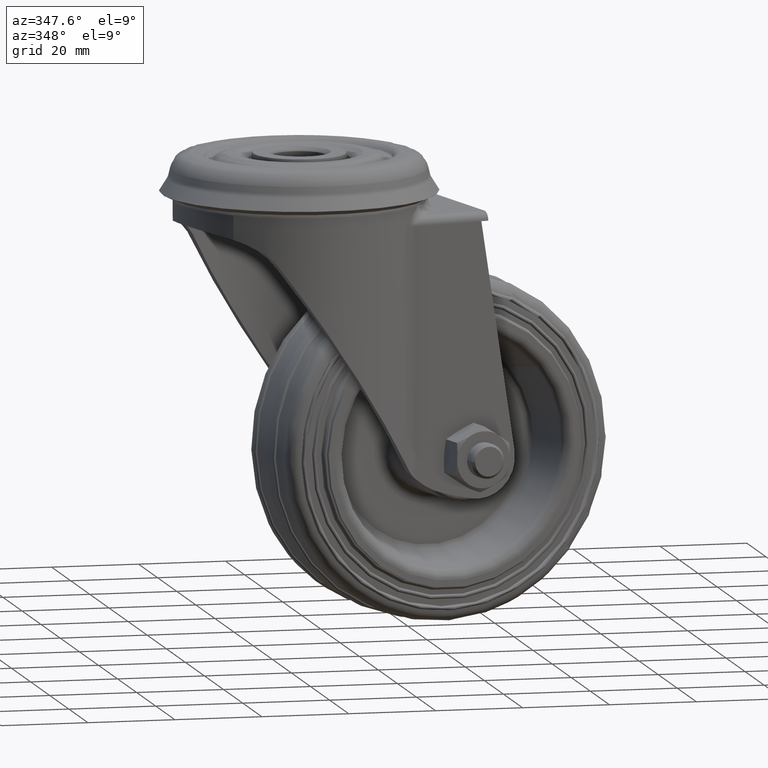
[diagram: clean part render]
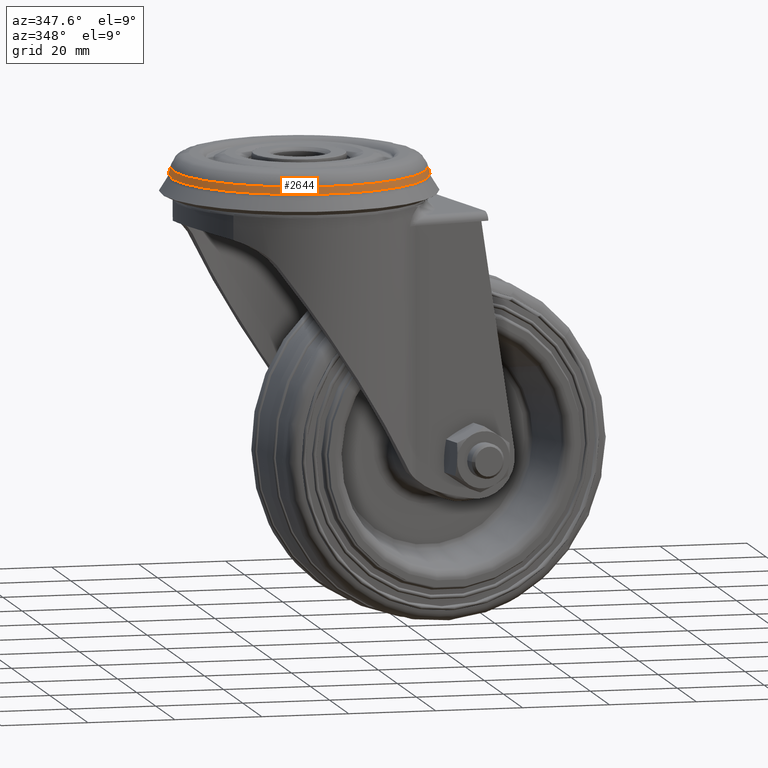
[diagram: same view with one face highlighted and labeled with its STEP entity id]
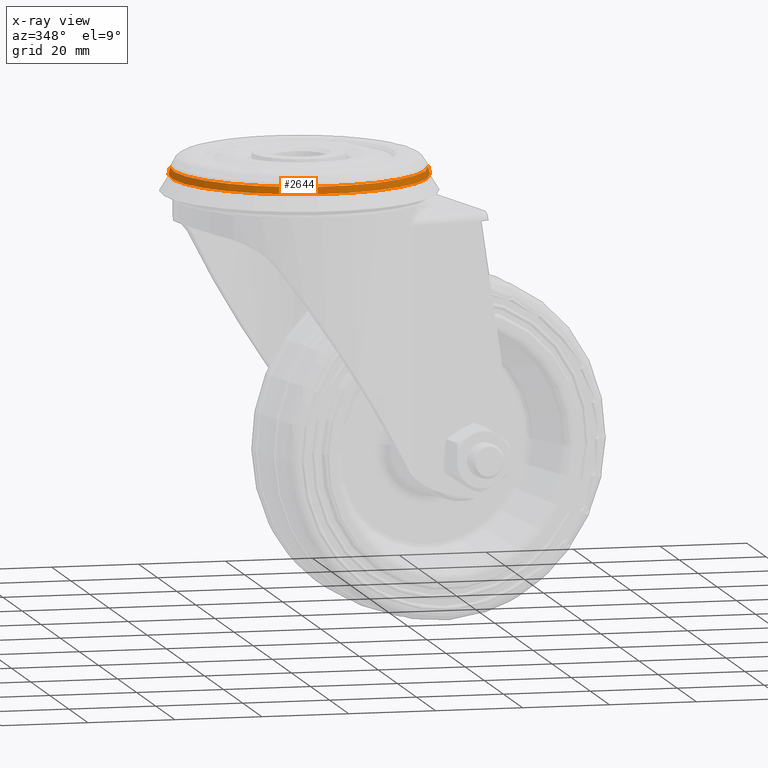
[diagram: x-ray of the same camera — body ghosted, the highlighted face saturated]
A machine part, auxiliary view. The second image highlights one B-rep face of the part: STEP entity #2644.
The next image is the same camera in x-ray: the body ghosted, the highlighted face saturated — about 0% of this face is hidden behind the body in this view.
In plain terms, the highlighted conical surface has half-angle 13.093 deg.
Its self-contained STEP definition (entity closure, byte-faithful):
#243=LINE('',#4230,#309);
#244=LINE('',#4233,#310);
#309=VECTOR('',#3327,1.68731241584954);
#310=VECTOR('',#3330,1.68731241604178);
#465=CONICAL_SURFACE('',#2886,29.4084933710844,0.228519067915746);
#615=FACE_OUTER_BOUND('',#820,.T.);
#820=EDGE_LOOP('',(#2029,#2030,#2031,#2032));
#1072=CIRCLE('',#2885,29.4084933710844);
#1073=CIRCLE('',#2887,29.0262574788757);
#1273=VERTEX_POINT('',#4226);
#1274=VERTEX_POINT('',#4227);
#1275=VERTEX_POINT('',#4229);
#1276=VERTEX_POINT('',#4231);
#1557=EDGE_CURVE('',#1274,#1275,#243,.T.);
#1559=EDGE_CURVE('',#1276,#1273,#244,.T.);
#1574=EDGE_CURVE('',#1276,#1275,#1072,.T.);
#1575=EDGE_CURVE('',#1274,#1273,#1073,.T.);
#2029=ORIENTED_EDGE('',*,*,#1574,.T.);
#2030=ORIENTED_EDGE('',*,*,#1557,.F.);
#2031=ORIENTED_EDGE('',*,*,#1575,.T.);
#2032=ORIENTED_EDGE('',*,*,#1559,.F.);
#2644=ADVANCED_FACE('',(#615),#465,.T.);
#2885=AXIS2_PLACEMENT_3D('',#4269,#3377,#3378);
#2886=AXIS2_PLACEMENT_3D('',#4270,#3379,#3380);
#2887=AXIS2_PLACEMENT_3D('',#4271,#3381,#3382);
#3327=DIRECTION('',(2.77420878068504E-12,0.226535340262604,-0.974002946408329));
#3330=DIRECTION('',(-2.73819848459414E-12,0.226535340263397,0.974002946408145));
#3377=DIRECTION('center_axis',(1.83404349605248E-11,-4.06672221298229E-13,
1.));
#3378=DIRECTION('ref_axis',(-1.,0.,1.83404349605248E-11));
#3379=DIRECTION('center_axis',(-1.83404349605248E-11,4.06672221298229E-13,
-1.));
#3380=DIRECTION('ref_axis',(-1.,0.,1.83404349605248E-11));
#3381=DIRECTION('center_axis',(-1.83404329268513E-11,4.0667795849706E-13,
-1.));
#3382=DIRECTION('ref_axis',(1.,-4.22572192988211E-29,-1.83404329268513E-11));
#4226=CARTESIAN_POINT('',(-1.84865809885177E-12,-29.026257478599,-3.46612631375654));
#4227=CARTESIAN_POINT('',(-6.0878252430767E-10,29.0262574787646,-3.46612631383423));
#4229=CARTESIAN_POINT('',(2.33812640339065E-12,29.4084933710159,-5.10957357838363));
#4230=CARTESIAN_POINT('',(4.00669047302344E-12,29.3538882437428,-4.87479539748956));
#4231=CARTESIAN_POINT('',(2.67585985526416E-15,-29.408493370973,-5.10957357847477));
#4233=CARTESIAN_POINT('',(-6.59434493812394E-13,-29.3538882434807,-4.87479539746568));
#4269=CARTESIAN_POINT('Origin',(-1.96356819692767E-9,-1.30974588882291E-10,
-5.10957357816064));
#4270=CARTESIAN_POINT('Origin',(-1.96356819692767E-9,-1.30974588882291E-10,
-5.10957357816064));
#4271=CARTESIAN_POINT('Origin',(-1.93342701241513E-9,-1.31642942660655E-10,
-3.46612631380854));